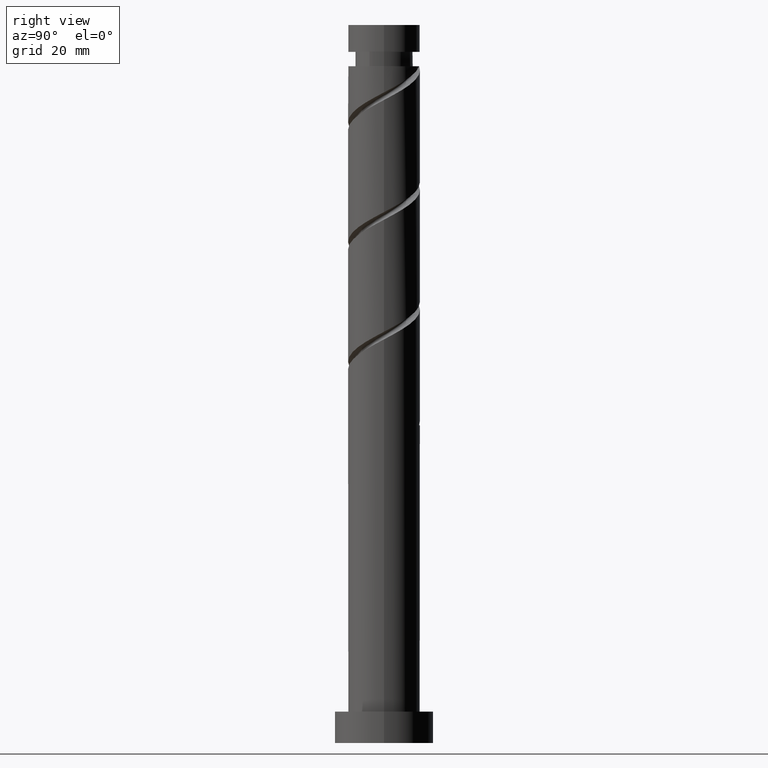
[diagram: clean part render]
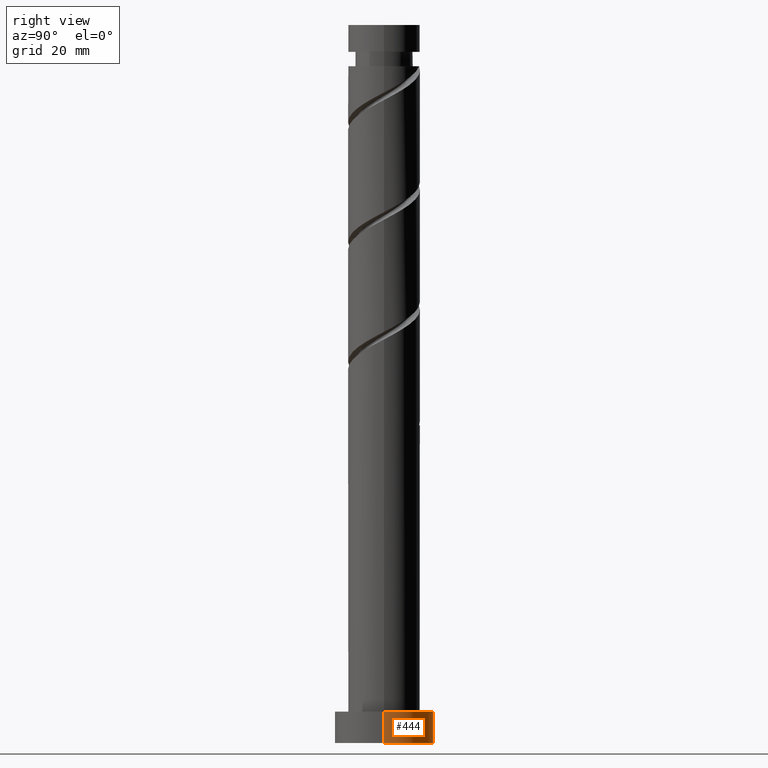
[diagram: same view with one face highlighted and labeled with its STEP entity id]
A machine part, right view. The second image highlights one B-rep face of the part: STEP entity #444.
In plain terms, the highlighted cylindrical surface (partial cylindrical patch) has radius 11 mm, axis along (-0, -0, -1).
Its self-contained STEP definition (entity closure, byte-faithful):
#76 = EDGE_CURVE ( 'NONE', #957, #227, #1014, .T. ) ;
#227 = VERTEX_POINT ( 'NONE', #1460 ) ;
#239 = DIRECTION ( 'NONE',  ( -0.000000000000000000, -0.000000000000000000, -1.000000000000000000 ) ) ;
#251 = EDGE_CURVE ( 'NONE', #382, #872, #1598, .T. ) ;
#252 = VECTOR ( 'NONE', #1131, 1000.000000000000000 ) ;
#273 = CARTESIAN_POINT ( 'NONE',  ( 0.000000000000000000, 0.000000000000000000, 7.000000000000000000 ) ) ;
#280 = DIRECTION ( 'NONE',  ( 1.000000000000000000, 0.000000000000000000, 0.000000000000000000 ) ) ;
#343 = CIRCLE ( 'NONE', #1275, 11.00000000000000000 ) ;
#371 = CYLINDRICAL_SURFACE ( 'NONE', #480, 11.00000000000000000 ) ;
#382 = VERTEX_POINT ( 'NONE', #1496 ) ;
#444 = ADVANCED_FACE ( 'NONE', ( #973 ), #371, .T. ) ;
#480 = AXIS2_PLACEMENT_3D ( 'NONE', #1390, #239, #1259 ) ;
#483 = EDGE_LOOP ( 'NONE', ( #1069, #829, #948, #903 ) ) ;
#610 = EDGE_CURVE ( 'NONE', #957, #382, #979, .T. ) ;
#699 = CARTESIAN_POINT ( 'NONE',  ( -11.00000000000000000, 0.000000000000000000, 0.000000000000000000 ) ) ;
#811 = DIRECTION ( 'NONE',  ( -0.000000000000000000, -0.000000000000000000, -1.000000000000000000 ) ) ;
#829 = ORIENTED_EDGE ( 'NONE', *, *, #76, .T. ) ;
#872 = VERTEX_POINT ( 'NONE', #699 ) ;
#903 = ORIENTED_EDGE ( 'NONE', *, *, #251, .F. ) ;
#948 = ORIENTED_EDGE ( 'NONE', *, *, #1370, .T. ) ;
#957 = VERTEX_POINT ( 'NONE', #1274 ) ;
#973 = FACE_OUTER_BOUND ( 'NONE', #483, .T. ) ;
#979 = CIRCLE ( 'NONE', #981, 11.00000000000000000 ) ;
#981 = AXIS2_PLACEMENT_3D ( 'NONE', #273, #1291, #280 ) ;
#1014 = LINE ( 'NONE', #1381, #252 ) ;
#1069 = ORIENTED_EDGE ( 'NONE', *, *, #610, .F. ) ;
#1071 = CARTESIAN_POINT ( 'NONE',  ( 0.000000000000000000, 0.000000000000000000, 0.000000000000000000 ) ) ;
#1131 = DIRECTION ( 'NONE',  ( -0.000000000000000000, -0.000000000000000000, -1.000000000000000000 ) ) ;
#1259 = DIRECTION ( 'NONE',  ( -1.000000000000000000, 0.000000000000000000, 0.000000000000000000 ) ) ;
#1274 = CARTESIAN_POINT ( 'NONE',  ( 11.00000000000000000, 1.347111479062088405E-15, 7.000000000000000000 ) ) ;
#1275 = AXIS2_PLACEMENT_3D ( 'NONE', #1071, #1587, #1457 ) ;
#1291 = DIRECTION ( 'NONE',  ( 0.000000000000000000, 0.000000000000000000, 1.000000000000000000 ) ) ;
#1332 = CARTESIAN_POINT ( 'NONE',  ( -11.00000000000000000, 0.000000000000000000, 7.000000000000000000 ) ) ;
#1370 = EDGE_CURVE ( 'NONE', #227, #872, #343, .T. ) ;
#1381 = CARTESIAN_POINT ( 'NONE',  ( 11.00000000000000000, 1.347111479062088405E-15, 7.000000000000000000 ) ) ;
#1390 = CARTESIAN_POINT ( 'NONE',  ( 0.000000000000000000, 0.000000000000000000, 7.000000000000000000 ) ) ;
#1457 = DIRECTION ( 'NONE',  ( 1.000000000000000000, 0.000000000000000000, 0.000000000000000000 ) ) ;
#1460 = CARTESIAN_POINT ( 'NONE',  ( 11.00000000000000000, 1.347111479062088405E-15, 0.000000000000000000 ) ) ;
#1496 = CARTESIAN_POINT ( 'NONE',  ( -11.00000000000000000, 0.000000000000000000, 7.000000000000000000 ) ) ;
#1510 = VECTOR ( 'NONE', #811, 1000.000000000000000 ) ;
#1587 = DIRECTION ( 'NONE',  ( 0.000000000000000000, 0.000000000000000000, 1.000000000000000000 ) ) ;
#1598 = LINE ( 'NONE', #1332, #1510 ) ;